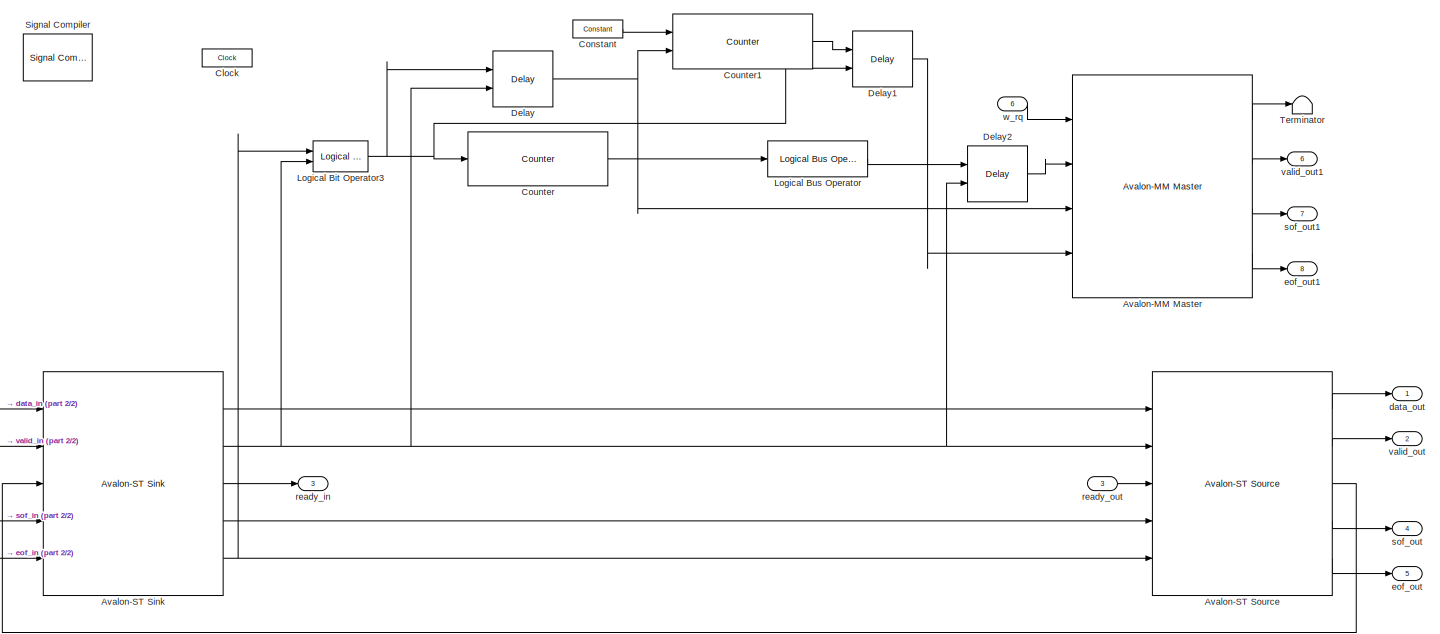
[diagram: root canvas - part 1/2, most of the canvas]
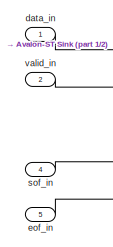
[diagram: root canvas - part 2/2, bottom left region]
MODEL slx_d8862b700dc7
KIND model
CONFIG AbsTol = auto
CONFIG FixedStep = auto
CONFIG InitFcn = %% DSPBuilder Start\nalt_dspbuilder_update_model(bdroot)\n%% DSPBuilder End\n
CONFIG MaxStep = auto
CONFIG MinStep = auto
CONFIG RelTol = 1e-3
CONFIG SampleTimeConstraint = Unconstrained
CONFIG Solver = ode45
CONFIG SolverMode = Auto
CONFIG SolverName = ode45
CONFIG StartTime = 0.0
CONFIG StopTime = 10.0
BLOCK [Reference] Avalon-MM Master  REF=allblocks_alteradspbuilder2/Avalon-MM Master
  BusType = Unsigned Integer
  PORTTYPE = Input
  Ports = [4, 4]
  SourceBlock = allblocks_alteradspbuilder2/Avalon-MM Master
  SourceType = Avalon-MM Master AlteraBlockset
  SpecifyClock = off
  addrType = Write
  addrWidth = 32
  burst = off
  bwl = 32
  bwr = 0
  byteEnable = off
  externalType = Inferred
  flowCtrl = off
  flush = off
  iofile = <userpath>\Desktop\final_sift_fpga\tb_gauss\gauss_Avalon-MM+Master_waitrequest.salt,<userpath>\Desktop\final_sift_fpga\tb_gauss\gauss_Avalon-MM+Master_address.capture,<userpath>\Desktop\final_sift_fpga\tb_gauss\gauss_Avalon-MM+Master_write.capture,<userpath>\Desktop\final_sift_fpga\tb_gauss\gauss_Avalon-MM+Master_writedata.capture,
  irq = off
  irq_mode = Prioritized
  maxBurst = 4
  pipeline = off
BLOCK [Reference] Avalon-ST Sink  REF=allblocks_alteradspbuilder2/Avalon-ST Sink
  BusType = Unsigned Integer
  PORTTYPE = Output
  Ports = [5, 5]
  SourceBlock = allblocks_alteradspbuilder2/Avalon-ST Sink
  SourceType = Avalon-ST Sink AlteraBlockset
  SpecifyClock = off
  bwl = 24
  bwr = 0
  empty = off
  endOfPacket = on
  externalType = Inferred
  iofile = <userpath>\Desktop\final_sift_fpga\tb_gauss\gauss_Avalon-ST+Sink_data.salt,<userpath>\Desktop\final_sift_fpga\tb_gauss\gauss_Avalon-ST+Sink_valid.salt,<userpath>\Desktop\final_sift_fpga\tb_gauss\gauss_Avalon-ST+Sink_ready.capture,<userpath>\Desktop\final_sift_fpga\tb_gauss\gauss_Avalon-ST+Sink_startofpacket.salt,<userpath>\Desktop\final_sift_fpga\tb_gauss\gauss_Avalon-ST+Sink_endofpacket.salt,
  numOfChannels = 0
  numOfErrorDescriptors = 0
  readyLatency = 1
  startOfPacket = on
  symbolWidth = 8
  symbolsPerBeat = 3
BLOCK [Reference] Avalon-ST Source  REF=allblocks_alteradspbuilder2/Avalon-ST Source
  BusType = Unsigned Integer
  PORTTYPE = Input
  Ports = [5, 5]
  SourceBlock = allblocks_alteradspbuilder2/Avalon-ST Source
  SourceType = Avalon-ST Source AlteraBlockset
  SpecifyClock = off
  bwl = 24
  bwr = 0
  empty = off
  endOfPacket = on
  externalType = Inferred
  iofile = <userpath>\Desktop\final_sift_fpga\tb_gauss\gauss_Avalon-ST+Source_data.capture,<userpath>\Desktop\final_sift_fpga\tb_gauss\gauss_Avalon-ST+Source_valid.capture,<userpath>\Desktop\final_sift_fpga\tb_gauss\gauss_Avalon-ST+Source_ready.salt,<userpath>\Desktop\final_sift_fpga\tb_gauss\gauss_Avalon-ST+Source_startofpacket.capture,<userpath>\Desktop\final_sift_fpga\tb_gauss\gauss_Avalon-ST+Source_endof...<+15ch>
  numOfChannels = 0
  numOfErrorDescriptors = 0
  readyLatency = 1
  startOfPacket = on
  symbolWidth = 8
  symbolsPerBeat = 3
BLOCK [Reference] Clock  REF=allblocks_alteradspbuilder2/Clock
  ClockPeriod = 10/1.5
  ClockPeriodUnit = ns
  Export = off
  PhaseOffset = 0
  Ports = []
  Reset = aclr
  ResetLatency = 0
  ResetRegisterCascadeDepth = 0
  ResetType = Active Low
  SampleTime = 1
  SimulationStartCycle = 5
  SourceBlock = allblocks_alteradspbuilder2/Clock
  SourceType = BaseClock AlteraBlockset
BLOCK [Reference] Constant  REF=allblocks_alteradspbuilder2/Constant
  BusType = Single Bit
  Ports = [0, 1]
  SourceBlock = allblocks_alteradspbuilder2/Constant
  SourceType = Constant AlteraBlockset
  SpecifyClock = off
  allowFloatingPointOverride = on
  bwl = 8
  bwr = 0
  logFile = <userpath>\Desktop\final_sift_fpga\tb_gauss\gauss_Constant.fixedpointlog
  logOutputs = off
  mask_cst = 1
  roundMode = Truncate
  satMode = Wrap
BLOCK [Reference] Counter  REF=allblocks_alteradspbuilder2/Counter
  BusType = Unsigned Integer
  Ports = [1, 1]
  SourceBlock = allblocks_alteradspbuilder2/Counter
  SourceType = Counter AlteraBlockset
  SpecifyClock = off
  bwl = 25
  bwr = 0
  direction = Increment
  modulo = 640*480
  pipeline_display = 1
  svalue = 1
  use_clk_ena = off
  use_ena = on
  use_modulo = on
  use_sclr = off
  use_sload = off
  use_sset = off
BLOCK [Reference] Counter1  REF=allblocks_alteradspbuilder2/Counter
  BusType = Unsigned Integer
  Ports = [2, 1]
  SourceBlock = allblocks_alteradspbuilder2/Counter
  SourceType = Counter AlteraBlockset
  SpecifyClock = off
  bwl = 25
  bwr = 0
  direction = Increment
  modulo = 10000000
  pipeline_display = 1
  svalue = 1
  use_clk_ena = off
  use_ena = on
  use_modulo = on
  use_sclr = on
  use_sload = off
  use_sset = off
BLOCK [Reference] Delay  REF=allblocks_alteradspbuilder2/Delay
  ClockPhase = 1
  Ports = [2, 1]
  SourceBlock = allblocks_alteradspbuilder2/Delay
  SourceType = Delay AlteraBlockset
  allowFloatingPointOverride = on
  logFile = <userpath>\Desktop\final_sift_fpga\tb_gauss\gauss_Delay.fixedpointlog
  logOutputs = off
  pipeline = 5
  pipeline_display = 5
  reset_value = 1
  use_ena = on
  use_init = off
  use_sclr = off
BLOCK [Reference] Delay1  REF=allblocks_alteradspbuilder2/Delay
  ClockPhase = 1
  Ports = [2, 1]
  SourceBlock = allblocks_alteradspbuilder2/Delay
  SourceType = Delay AlteraBlockset
  allowFloatingPointOverride = on
  logFile = <userpath>\Desktop\final_sift_fpga\tb_gauss\gauss_Delay1.fixedpointlog
  logOutputs = off
  pipeline = 1
  pipeline_display = 1
  reset_value = 1
  use_ena = on
  use_init = off
  use_sclr = off
BLOCK [Reference] Delay2  REF=allblocks_alteradspbuilder2/Delay
  ClockPhase = 1
  Ports = [2, 1]
  SourceBlock = allblocks_alteradspbuilder2/Delay
  SourceType = Delay AlteraBlockset
  allowFloatingPointOverride = on
  logFile = <userpath>\Desktop\final_sift_fpga\tb_gauss\gauss_Delay2.fixedpointlog
  logOutputs = off
  pipeline = 5
  pipeline_display = 5
  reset_value = 1
  use_ena = on
  use_init = off
  use_sclr = off
BLOCK [Reference] Logical Bit Operator3  REF=allblocks_alteradspbuilder2/Logical Bit Operator
  LogicalOperator = AND
  Ports = [2, 1]
  SourceBlock = allblocks_alteradspbuilder2/Logical Bit Operator
  SourceType = Logical Bit Operator AlteraBlockset
  pipeline_display = 0
  user_inputs = 2
BLOCK [Reference] Logical Bus Operator  REF=allblocks_alteradspbuilder2/Logical Bus Operator
  BusType = Unsigned Integer
  LogicalOp_text = Shift Left
  Ports = [1, 1]
  SourceBlock = allblocks_alteradspbuilder2/Logical Bus Operator
  SourceType = Logical Bus Operator AlteraBlockset
  bwl = 25
  bwr = 0
  force_sign_ext = on
  mask_value_num = -5
  pipeline_display = 0
  shift_amount = 2
BLOCK [Reference] Signal Compiler  REF=allblocks_alteradspbuilder2/Signal Compiler
  DeviceFamily = Cyclone IV GX
  DisableEarlyHDLGeneration = off
  EnableSignalTap = off
  ExportDir = <path>\quartus\dsp_builder
  MAX10_ProgrammingMode = Internal Flash (SDM) Single Boot
  Ports = []
  SignalTapDepth = 128
  SourceBlock = allblocks_alteradspbuilder2/Signal Compiler
  SourceType = Signal Compiler AlteraBlockset
  StpClock = Clock
  StpUseDefaultClock = on
  UseBoardBlock = off
BLOCK [Terminator] Terminator
BLOCK [Inport] data_in
  IconDisplay = Port number
BLOCK [Outport] data_out
  IconDisplay = Port number
BLOCK [Inport] eof_in
  IconDisplay = Port number
  Port = 5
BLOCK [Outport] eof_out
  IconDisplay = Port number
  Port = 5
BLOCK [Outport] eof_out1
  IconDisplay = Port number
  Port = 8
BLOCK [Outport] ready_in 
  IconDisplay = Port number
  Port = 3
BLOCK [Inport] ready_out 
  IconDisplay = Port number
  Port = 3
BLOCK [Inport] sof_in
  IconDisplay = Port number
  Port = 4
BLOCK [Outport] sof_out
  IconDisplay = Port number
  Port = 4
BLOCK [Outport] sof_out1
  IconDisplay = Port number
  Port = 7
BLOCK [Inport] valid_in
  IconDisplay = Port number
  Port = 2
BLOCK [Outport] valid_out
  IconDisplay = Port number
  Port = 2
BLOCK [Outport] valid_out1
  IconDisplay = Port number
  Port = 6
BLOCK [Inport] w_rq
  IconDisplay = Port number
  Port = 6
LINE Avalon-MM Master:1 -> Terminator:1
LINE Avalon-MM Master:2 -> valid_out1:1
LINE Avalon-MM Master:3 -> sof_out1:1
LINE Avalon-MM Master:4 -> eof_out1:1
LINE Avalon-ST Sink:1 -> Avalon-ST Source:1
NET Avalon-ST Sink:2 -> Avalon-ST Source:2, Delay2:2, Delay:2, Logical Bit Operator3:2
LINE Avalon-ST Sink:3 -> ready_in :1
LINE Avalon-ST Sink:4 -> Avalon-ST Source:4
NET Avalon-ST Sink:5 -> Avalon-ST Source:5, Logical Bit Operator3:1
LINE Avalon-ST Source:1 -> data_out:1
LINE Avalon-ST Source:2 -> valid_out:1
LINE Avalon-ST Source:3 -> Avalon-ST Sink:3
LINE Avalon-ST Source:4 -> sof_out:1
LINE Avalon-ST Source:5 -> eof_out:1
LINE Constant:1 -> Counter1:1
LINE Counter1:1 -> Delay1:1
LINE Counter:1 -> Logical Bus Operator:1
LINE Delay1:1 -> Avalon-MM Master:4
LINE Delay2:1 -> Avalon-MM Master:2
NET Delay:1 -> Avalon-MM Master:3, Counter1:2
NET Logical Bit Operator3:1 -> Counter:1, Delay1:2, Delay:1
LINE Logical Bus Operator:1 -> Delay2:1
LINE data_in:1 -> Avalon-ST Sink:1
LINE eof_in:1 -> Avalon-ST Sink:5
LINE ready_out :1 -> Avalon-ST Source:3
LINE sof_in:1 -> Avalon-ST Sink:4
LINE valid_in:1 -> Avalon-ST Sink:2
LINE w_rq:1 -> Avalon-MM Master:1
note: NET lines group one-source signal fan-out (src -> all destinations, sorted); 1:1 wires keep LINE
note: 1 file-system path scrubbed to <path> (not preserved elsewhere — flat text is the only slx artifact)
